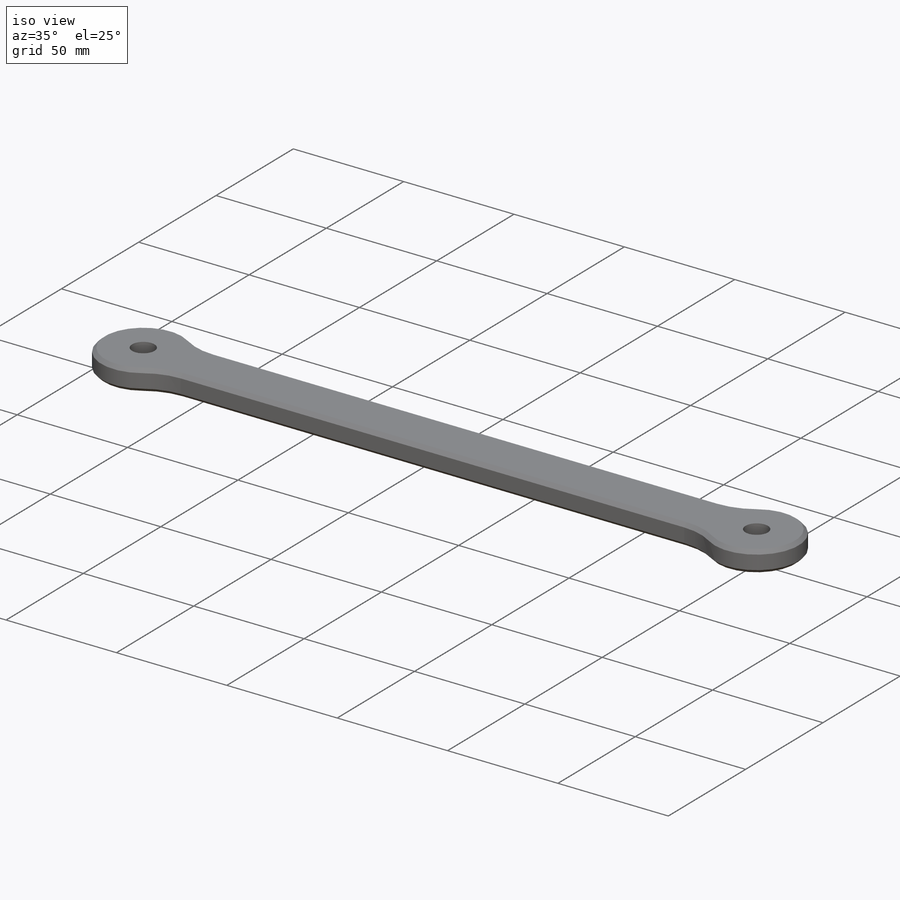
[diagram: iso view]
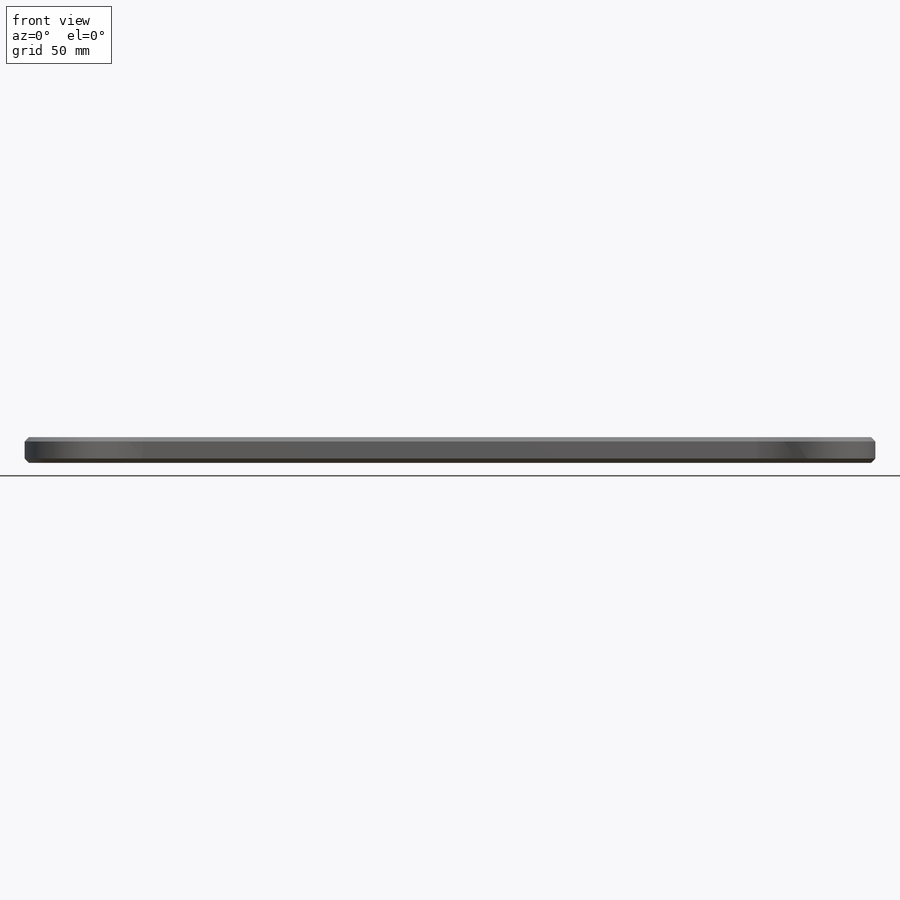
[diagram: front view]
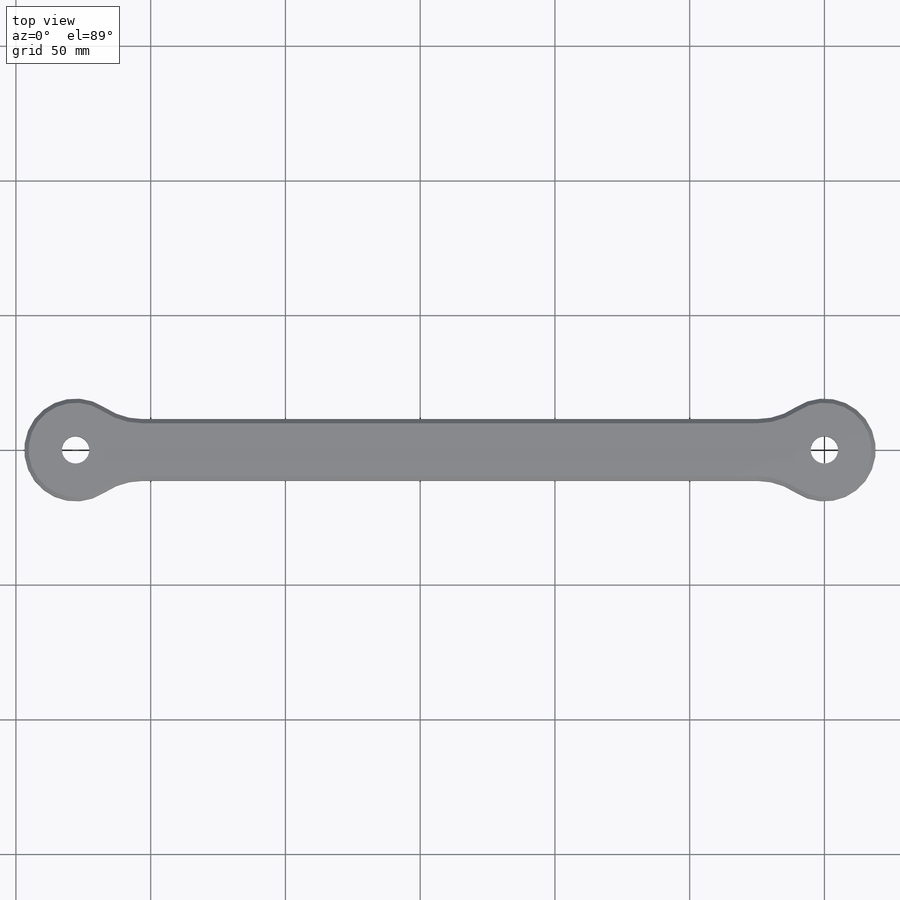
[diagram: top view]
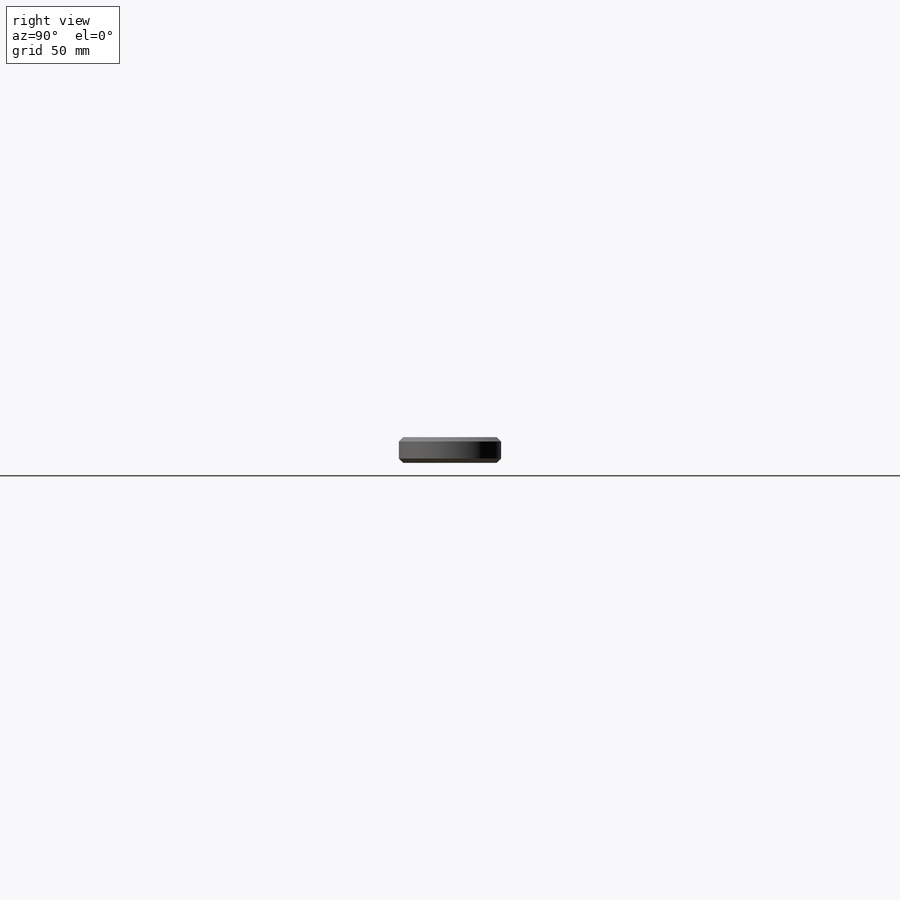
[diagram: right view]
SOLIDWORKS PART (.sldprt)
format: sldprt  version: not decoded by parser v0  size: 304,640 bytes
history: native  units: mm
features: sketch x3, cut_extrude x2, material x1, extrude x1, chamfer x1 + 1 further entry (+11 scaffold rows collapsed)
feature tree (20):
  scaffold x11  (default folders/planes/origin — collapsed)
  material  "7075-T6, Plate (SS)"
  "Annotations"  RD1=22.86mm
  sketch  "Sketch1"  dims[c1.D2=50.8mm c1.D3=50.8mm c1.D4=635.0mm c1.D5=635.0mm c2.D4=38.1mm c2.D5=38.1mm c2.D1=277.876mm c3.D4=19.05mm c3.D5=19.05mm]
  extrude  "Boss-Extrude1"  Depth=9.525mm
  sketch  "Sketch2"  dims[D1=10.16mm D2=10.16mm D3=277.876mm]
  cut_extrude  "Cut-Extrude1"  [1 undecoded]
  sketch  "Sketch3"  dims[c1.D1=22.86mm c1.D2=22.86mm c1.D3=38.1mm c1.D4=38.1mm c2.D1=25.4mm c2.D2=25.4mm]
  cut_extrude  "Cut-Extrude2"  [1 undecoded]
  chamfer  "Chamfer1"  Distance=1.5875mm Angle=45deg
decode coverage: 5 of 7 modeling features carry decoded parameters; 1 rows unclassified (native names shown)
note: 2 parameter values undecoded
note: suppression state not decoded; provenance and decode notes live in map.json
